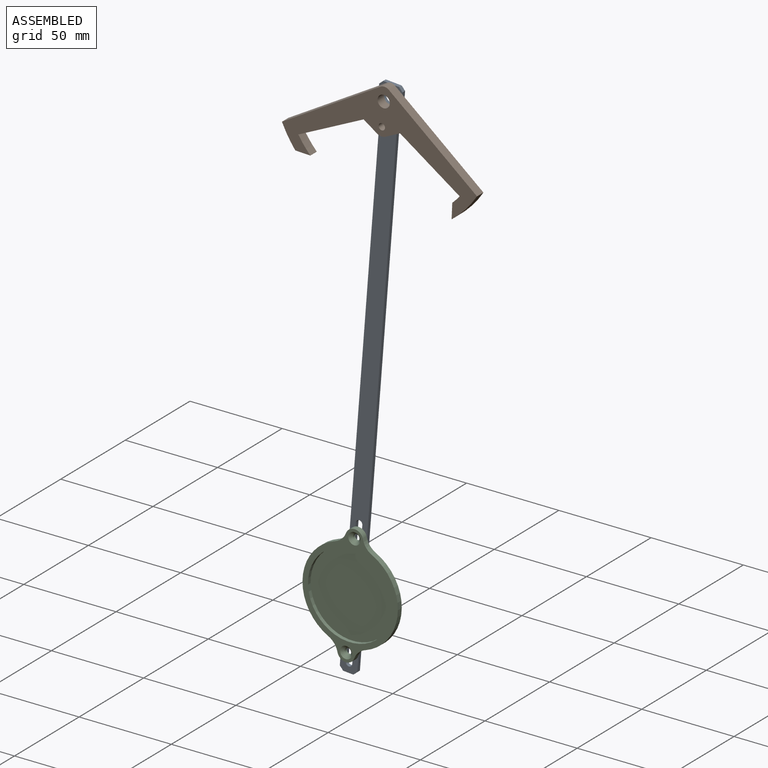
[diagram: assembled view]
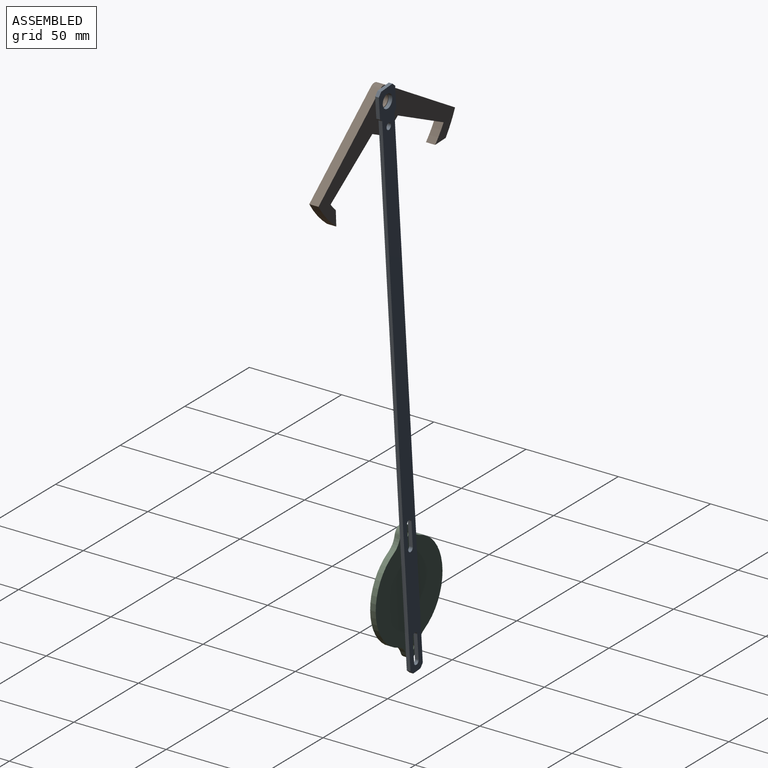
[diagram: assembled view, second angle]
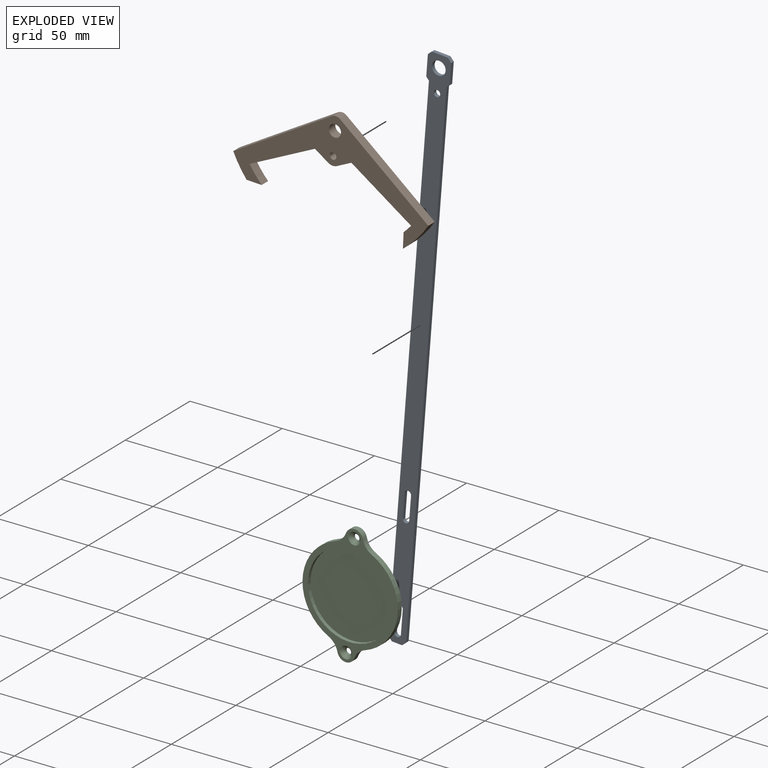
[diagram: exploded view]
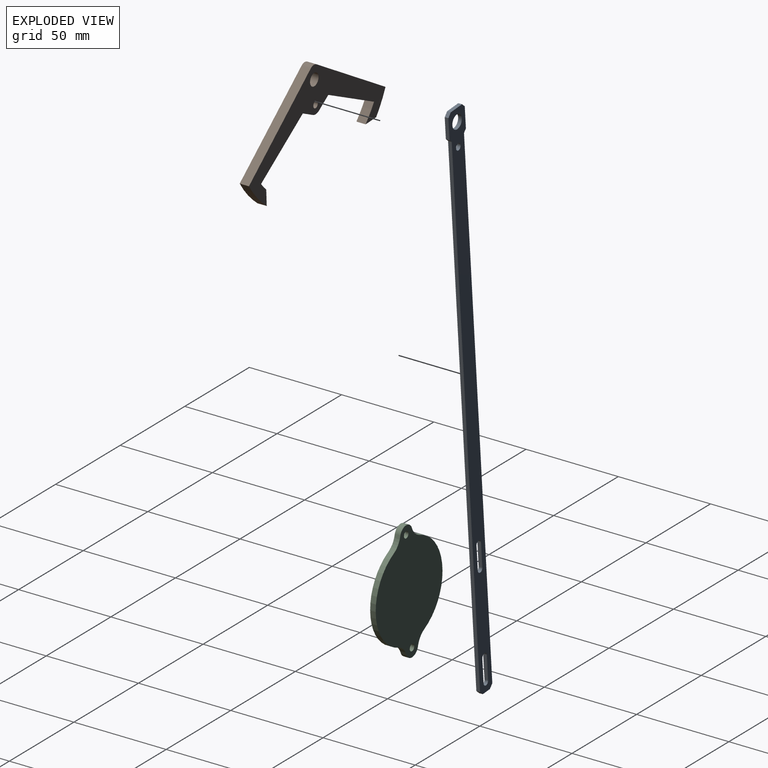
[diagram: exploded view, second angle]
ASSEMBLY  parts=3 mates=6
PART A: 24 faces, bbox 12.7x2x295.6 mm
  f0: cylinder r=1.75mm len=3.5mm, axis (0,1,0), area 11mm2, adj f1,f17,f18,f19
  f1: plane 12.7x2mm, normal (-1,0,0), area 25.4mm2, adj f0,f2,f18,f19
  f2: cylinder r=1.75mm len=3.5mm, axis (0,1,0), area 11mm2, adj f1,f17,f18,f19
  f3: cylinder r=1.75mm len=3.5mm, axis (0,1,0), area 11mm2, adj f4,f13,f18,f19
  f4: plane 12.7x2mm, normal (1,0,0), area 25.4mm2, adj f3,f5,f18,f19
  f5: cylinder r=1.75mm len=3.5mm, axis (0,1,0), area 11mm2, adj f4,f13,f18,f19
  f6: plane 2x1.59mm, normal (0.71,0,-0.71), area 4.5mm2, adj f7,f14,f18,f19
  f7: plane 11.2x2mm, normal (1,0,0), area 22.4mm2, adj f6,f18,f19,f20
  f8: plane 8.7x2mm, normal (0,0,1), area 17.4mm2, adj f18,f19,f20,f21
  f9: plane 11.2x2mm, normal (-1,0,0), area 22.4mm2, adj f10,f18,f19,f21
  f10: plane 2x1.59mm, normal (-0.71,0,-0.71), area 4.5mm2, adj f9,f11,f18,f19
  f11: plane 278.77x2mm, normal (-1,0,0), area 557.5mm2, adj f10,f18,f19,f22
  f12: plane 5.53x2mm, normal (0,0,-1), area 11.1mm2, adj f18,f19,f22,f23
  f13: plane 12.7x2mm, normal (-1,0,0), area 25.4mm2, adj f3,f5,f18,f19
  f14: plane 278.77x2mm, normal (1,0,0), area 557.5mm2, adj f6,f18,f19,f23
  f15: cylinder r=3.67mm len=7.35mm, axis (0,1,0), area 46.2mm2, adj f18,f19
  f16: cylinder r=1.75mm len=3.5mm, axis (0,1,0), area 22mm2, adj f18,f19
  f17: plane 12.7x2mm, normal (1,0,0), area 25.4mm2, adj f0,f2,f18,f19
  f18: plane 295.56x12.7mm, normal (0,-1,0), area 2691.5mm2, adj f0,f1,f2,f3,f4,f5,f6,f7
  f19: plane 295.56x12.7mm, normal (0,1,0), area 2691.5mm2, adj f0,f1,f2,f3,f4,f5,f6,f7
  f20: plane 2x2mm, normal (0.71,0,0.71), area 5.7mm2, adj f7,f8,f18,f19
  f21: plane 2x2mm, normal (-0.71,0,0.71), area 5.7mm2, adj f8,f9,f18,f19
  f22: plane 2x2mm, normal (-0.71,0,-0.71), area 5.7mm2, adj f11,f12,f18,f19
  f23: plane 2x2mm, normal (0.71,0,-0.71), area 5.7mm2, adj f12,f14,f18,f19
PART B: 18 faces, bbox 106.1x5x52.2 mm
  f0: cylinder r=54.38mm len=8.03mm, axis (0,1,0), area 54mm2, adj f2,f3,f4,f17
  f1: cylinder r=60.39mm len=15.93mm, axis (0,1,0), area 101.9mm2, adj f2,f3,f9,f16
  f2: plane 106.07x52.19mm, normal (0,-1,0), area 1389.8mm2, adj f0,f1,f4,f5,f6,f7,f8,f9
  f3: plane 106.07x52.19mm, normal (0,1,0), area 1389.8mm2, adj f0,f1,f4,f5,f6,f7,f8,f9
  f4: plane 34x19.63mm, normal (0.5,0,-0.87), area 196.3mm2, adj f0,f2,f3,f11
  f5: plane 50.74x35.53mm, normal (-0.57,0,0.82), area 309.7mm2, adj f2,f3,f6,f15
  f6: cylinder r=60.39mm len=11.52mm, axis (0,1,0), area 70.7mm2, adj f2,f3,f5,f17
  f7: plane 34x19.63mm, normal (-0.5,0,-0.87), area 196.3mm2, adj f2,f3,f8,f13
  f8: cylinder r=54.38mm len=5mm, axis (0,1,0), area 29.3mm2, adj f2,f3,f7,f16
  f9: plane 50.74x35.53mm, normal (0.57,0,0.82), area 309.7mm2, adj f1,f2,f3,f15
  f10: cylinder r=3.3mm len=6.6mm, axis (0,1,0), area 103.7mm2, adj f2,f3
  f11: plane 7.52x5mm, normal (-0.5,0,-0.87), area 43.4mm2, adj f2,f3,f4,f14
  f12: cylinder r=1.75mm len=5mm, axis (0,-1,0), area 55mm2, adj f2,f3
  f13: plane 7.52x5mm, normal (0.5,0,-0.87), area 43.4mm2, adj f2,f3,f7,f14
  f14: cylinder r=4.75mm len=5mm, axis (0,-1,0), area 24.9mm2, adj f2,f3,f11,f13
  f15: cylinder r=4mm len=5mm, axis (0,1,0), area 24.4mm2, adj f2,f3,f5,f9
  f16: plane 8.19x5mm, normal (-1,0,-0.03), area 41mm2, adj f1,f2,f3,f8
  f17: plane 8.18x5mm, normal (0.03,0,-1), area 40.9mm2, adj f0,f2,f3,f6
PART C: 16 faces, bbox 51.7x3x66.7 mm
  f0: cylinder r=25.86mm len=47.69mm, axis (0,1,0), area 182.1mm2, adj f4,f5,f7,f11
  f1: cylinder r=25.86mm len=47.69mm, axis (0,1,0), area 182.1mm2, adj f4,f5,f8,f12
  f2: plane 45.72x45.72mm, normal (0,-1,0), area 1641.7mm2, adj f3
  f3: cylinder r=22.86mm len=45.72mm, axis (0,1,0), area 287.3mm2, adj f2,f4
  f4: plane 66.65x51.72mm, normal (0,-1,0), area 541mm2, adj f0,f1,f3,f6,f7,f8,f10,f11
  f5: plane 66.65x51.72mm, normal (0,1,0), area 2229.9mm2, adj f0,f1,f6,f7,f8,f9,f11,f12
  f6: cylinder r=4.75mm len=9.11mm, axis (0,1,0), area 36.6mm2, adj f4,f5,f7,f8
  f7: cylinder r=9.53mm len=6.08mm, axis (0,1,0), area 25.3mm2, adj f0,f4,f5,f6
  f8: cylinder r=9.53mm len=6.08mm, axis (0,1,0), area 25.3mm2, adj f1,f4,f5,f6
  f9: cylinder r=1.75mm len=3.5mm, axis (0,1,0), area 16.5mm2, adj f5,f10
  f10: cone r=1.75mm half-angle=45deg, axis (0,-1,0), area 33.3mm2, adj f4,f9
  f11: cylinder r=9.53mm len=6.08mm, axis (0,1,0), area 25.3mm2, adj f0,f4,f5,f13
  f12: cylinder r=9.53mm len=6.08mm, axis (0,1,0), area 25.3mm2, adj f1,f4,f5,f13
  f13: cylinder r=4.75mm len=9.11mm, axis (0,1,0), area 36.6mm2, adj f4,f5,f11,f12
  f14: cylinder r=1.75mm len=3.5mm, axis (0,1,0), area 16.5mm2, adj f5,f15
  f15: cone r=3.25mm half-angle=45deg, axis (0,-1,0), area 33.3mm2, adj f4,f14
PLACE A rot(axis=(0,1,0),4.5deg) t=(-11.07,0,-140.5)mm
PLACE B rot(axis=(0,1,0),4.5deg) t=(-6.35,-4.5,-80.57)mm
PLACE C rot(axis=(0,1,0),4.5deg) t=(-19.56,-2,-248.09)mm
MATE planar C.f0 <-> A.f18  axis (0,1,0) through (-19.56,-2,-248.09)mm
MATE pin_slot C.f14 <-> A.f18  axis (0,1,0) through (-21.8,-2,-276.58)mm
MATE cylindrical B.f10 <-> A.f15  axis (0,-1,0) through (0,-7,0)mm
MATE cylindrical B.f12 <-> A.f16  axis (0,-1,0) through (-1,-7,-12.66)mm
MATE planar A.f18 <-> B.f3  axis (0,-1,0) through (6.27,-2,-1.25)mm
MATE pin_slot C.f9 <-> A.f18  axis (0,1,0) through (-17.31,-2,-219.61)mm
